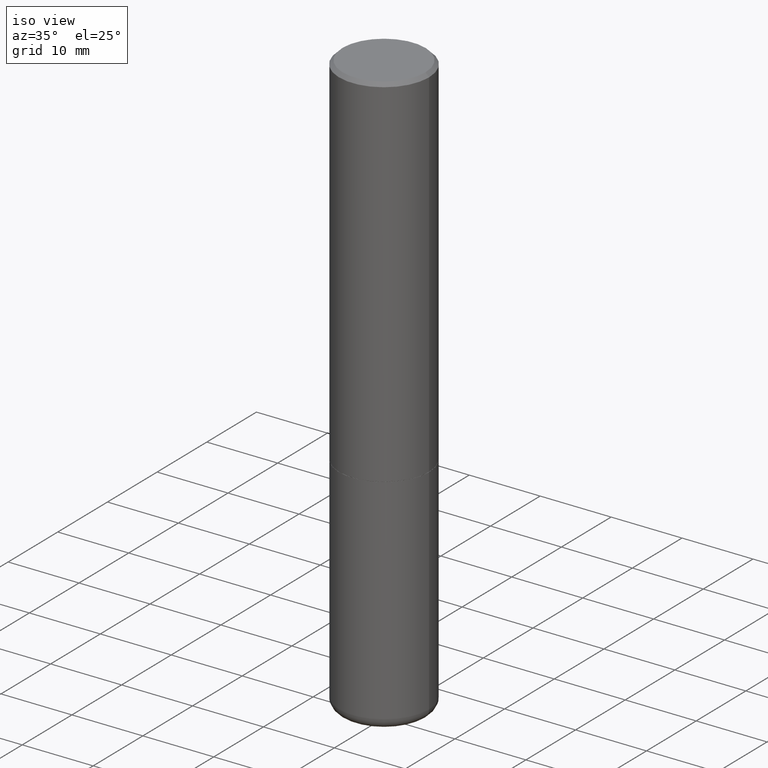
[diagram: clean part render]
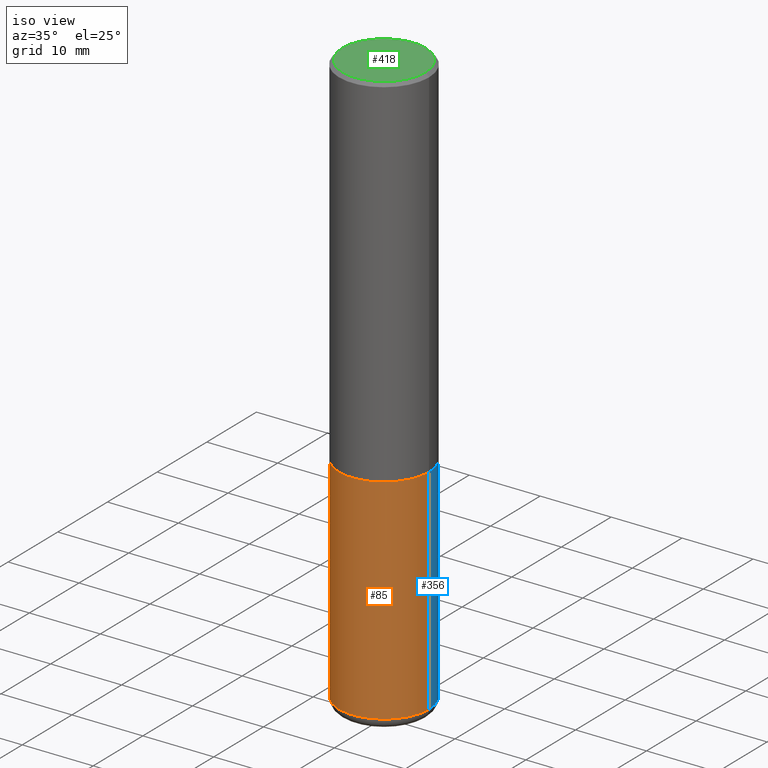
[diagram: same view with three faces highlighted in distinct colors, each labeled with its STEP entity id]
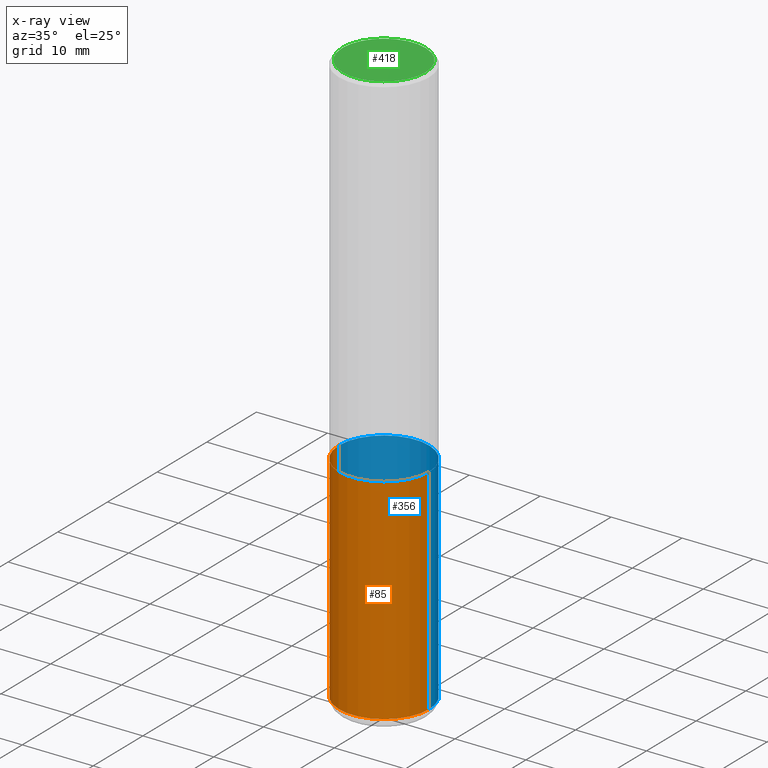
[diagram: x-ray of the same camera — body ghosted, the three highlighted faces saturated]
A machine part, iso view with three faces highlighted in distinct colors.
The next image is the same camera in x-ray (body ghosted, the three faces saturated) — at least one of them is partly hidden behind the body in this view.
Their STEP definitions:

[orange] entity #85 — the highlighted cylindrical surface (partial cylindrical patch) has radius 6.35 mm, axis along (-0, 0, 1).
#15 = CARTESIAN_POINT ( 'NONE',  ( -0.2500000000000000000, -7.284037234897712778E-15, -2.000000000000000000 ) ) ;
#40 = CYLINDRICAL_SURFACE ( 'NONE', #93, 0.2500000000000000000 ) ;
#71 = CARTESIAN_POINT ( 'NONE',  ( 0.2500000000000000000, -8.728703347107857054E-15, -2.000000000000000000 ) ) ;
#76 = DIRECTION ( 'NONE',  ( 1.000000000000000000, -6.982962677686266711E-15, 4.876176775795935793E-29 ) ) ;
#85 = ADVANCED_FACE ( 'NONE', ( #232 ), #40, .T. ) ;
#91 = DIRECTION ( 'NONE',  ( -2.445468806185136597E-29, 3.491481338843145583E-15, 1.000000000000000000 ) ) ;
#93 = AXIS2_PLACEMENT_3D ( 'NONE', #172, #362, #76 ) ;
#95 = CARTESIAN_POINT ( 'NONE',  ( -0.2500000000000000000, 1.776356839400250465E-15, -1.229733772563726445E-29 ) ) ;
#101 = ORIENTED_EDGE ( 'NONE', *, *, #288, .F. ) ;
#110 = VECTOR ( 'NONE', #350, 39.37007874015748143 ) ;
#111 = CARTESIAN_POINT ( 'NONE',  ( 0.2500000000000000000, -1.745740669421566678E-15, 1.219044193948983948E-29 ) ) ;
#129 = CIRCLE ( 'NONE', #397, 0.2500000000000000000 ) ;
#143 = LINE ( 'NONE', #111, #153 ) ;
#153 = VECTOR ( 'NONE', #368, 39.37007874015748143 ) ;
#154 = LINE ( 'NONE', #95, #110 ) ;
#172 = CARTESIAN_POINT ( 'NONE',  ( 0.000000000000000000, 0.000000000000000000, 0.000000000000000000 ) ) ;
#185 = DIRECTION ( 'NONE',  ( 1.000000000000000000, -6.982962677686266711E-15, 0.000000000000000000 ) ) ;
#186 = VERTEX_POINT ( 'NONE', #71 ) ;
#192 = DIRECTION ( 'NONE',  ( 1.000000000000000000, -6.982962677686270655E-15, 0.000000000000000000 ) ) ;
#219 = CARTESIAN_POINT ( 'NONE',  ( -0.2499999999999999722, -9.361468631509382488E-15, -3.189999999999999947 ) ) ;
#232 = FACE_OUTER_BOUND ( 'NONE', #345, .T. ) ;
#244 = EDGE_CURVE ( 'NONE', #278, #319, #154, .T. ) ;
#246 = ORIENTED_EDGE ( 'NONE', *, *, #244, .F. ) ;
#251 = CARTESIAN_POINT ( 'NONE',  ( 4.890937612370273194E-29, -6.982962677686291165E-15, -2.000000000000000000 ) ) ;
#252 = DIRECTION ( 'NONE',  ( -2.445468806185136597E-29, 3.491481338843145583E-15, 1.000000000000000000 ) ) ;
#278 = VERTEX_POINT ( 'NONE', #219 ) ;
#280 = EDGE_CURVE ( 'NONE', #278, #414, #310, .T. ) ;
#288 = EDGE_CURVE ( 'NONE', #319, #186, #129, .T. ) ;
#291 = CARTESIAN_POINT ( 'NONE',  ( 7.801045491730585789E-29, -1.113782547090963453E-14, -3.189999999999999947 ) ) ;
#310 = CIRCLE ( 'NONE', #337, 0.2500000000000000000 ) ;
#319 = VERTEX_POINT ( 'NONE', #15 ) ;
#330 = CARTESIAN_POINT ( 'NONE',  ( 0.2499999999999999722, -1.288356614033120121E-14, -3.189999999999999947 ) ) ;
#337 = AXIS2_PLACEMENT_3D ( 'NONE', #291, #252, #192 ) ;
#345 = EDGE_LOOP ( 'NONE', ( #246, #351, #385, #101 ) ) ;
#350 = DIRECTION ( 'NONE',  ( -2.445468806185136877E-29, 3.491481338843145188E-15, 1.000000000000000000 ) ) ;
#351 = ORIENTED_EDGE ( 'NONE', *, *, #280, .T. ) ;
#362 = DIRECTION ( 'NONE',  ( -2.445468806185136597E-29, 3.491481338843145583E-15, 1.000000000000000000 ) ) ;
#367 = EDGE_CURVE ( 'NONE', #414, #186, #143, .T. ) ;
#368 = DIRECTION ( 'NONE',  ( -2.445468806185136877E-29, 3.491481338843145188E-15, 1.000000000000000000 ) ) ;
#385 = ORIENTED_EDGE ( 'NONE', *, *, #367, .T. ) ;
#397 = AXIS2_PLACEMENT_3D ( 'NONE', #251, #91, #185 ) ;
#414 = VERTEX_POINT ( 'NONE', #330 ) ;

[blue] entity #356 — the highlighted cylindrical surface (partial cylindrical patch) has radius 6.35 mm, axis along (-0, 0, 1).
#3 = CYLINDRICAL_SURFACE ( 'NONE', #415, 0.2500000000000000000 ) ;
#15 = CARTESIAN_POINT ( 'NONE',  ( -0.2500000000000000000, -7.284037234897712778E-15, -2.000000000000000000 ) ) ;
#37 = DIRECTION ( 'NONE',  ( -2.445468806185136597E-29, 3.491481338843145583E-15, 1.000000000000000000 ) ) ;
#54 = CIRCLE ( 'NONE', #364, 0.2500000000000000000 ) ;
#62 = CARTESIAN_POINT ( 'NONE',  ( 4.890937612370273194E-29, -6.982962677686291165E-15, -2.000000000000000000 ) ) ;
#64 = DIRECTION ( 'NONE',  ( 1.000000000000000000, -6.982962677686270655E-15, 0.000000000000000000 ) ) ;
#71 = CARTESIAN_POINT ( 'NONE',  ( 0.2500000000000000000, -8.728703347107857054E-15, -2.000000000000000000 ) ) ;
#95 = CARTESIAN_POINT ( 'NONE',  ( -0.2500000000000000000, 1.776356839400250465E-15, -1.229733772563726445E-29 ) ) ;
#100 = DIRECTION ( 'NONE',  ( -2.445468806185136597E-29, 3.491481338843145583E-15, 1.000000000000000000 ) ) ;
#103 = ORIENTED_EDGE ( 'NONE', *, *, #208, .T. ) ;
#110 = VECTOR ( 'NONE', #350, 39.37007874015748143 ) ;
#111 = CARTESIAN_POINT ( 'NONE',  ( 0.2500000000000000000, -1.745740669421566678E-15, 1.219044193948983948E-29 ) ) ;
#130 = DIRECTION ( 'NONE',  ( 1.000000000000000000, -6.982962677686266711E-15, 0.000000000000000000 ) ) ;
#143 = LINE ( 'NONE', #111, #153 ) ;
#153 = VECTOR ( 'NONE', #368, 39.37007874015748143 ) ;
#154 = LINE ( 'NONE', #95, #110 ) ;
#170 = EDGE_CURVE ( 'NONE', #186, #319, #54, .T. ) ;
#186 = VERTEX_POINT ( 'NONE', #71 ) ;
#190 = EDGE_LOOP ( 'NONE', ( #103, #355, #199, #387 ) ) ;
#198 = CARTESIAN_POINT ( 'NONE',  ( 7.801045491730585789E-29, -1.113782547090963453E-14, -3.189999999999999947 ) ) ;
#199 = ORIENTED_EDGE ( 'NONE', *, *, #170, .F. ) ;
#205 = FACE_OUTER_BOUND ( 'NONE', #190, .T. ) ;
#208 = EDGE_CURVE ( 'NONE', #414, #278, #212, .T. ) ;
#212 = CIRCLE ( 'NONE', #240, 0.2500000000000000000 ) ;
#219 = CARTESIAN_POINT ( 'NONE',  ( -0.2499999999999999722, -9.361468631509382488E-15, -3.189999999999999947 ) ) ;
#240 = AXIS2_PLACEMENT_3D ( 'NONE', #198, #100, #64 ) ;
#244 = EDGE_CURVE ( 'NONE', #278, #319, #154, .T. ) ;
#278 = VERTEX_POINT ( 'NONE', #219 ) ;
#313 = DIRECTION ( 'NONE',  ( -2.445468806185136597E-29, 3.491481338843145583E-15, 1.000000000000000000 ) ) ;
#319 = VERTEX_POINT ( 'NONE', #15 ) ;
#330 = CARTESIAN_POINT ( 'NONE',  ( 0.2499999999999999722, -1.288356614033120121E-14, -3.189999999999999947 ) ) ;
#350 = DIRECTION ( 'NONE',  ( -2.445468806185136877E-29, 3.491481338843145188E-15, 1.000000000000000000 ) ) ;
#355 = ORIENTED_EDGE ( 'NONE', *, *, #244, .T. ) ;
#356 = ADVANCED_FACE ( 'NONE', ( #205 ), #3, .T. ) ;
#364 = AXIS2_PLACEMENT_3D ( 'NONE', #62, #313, #130 ) ;
#366 = CARTESIAN_POINT ( 'NONE',  ( 0.000000000000000000, 0.000000000000000000, 0.000000000000000000 ) ) ;
#367 = EDGE_CURVE ( 'NONE', #414, #186, #143, .T. ) ;
#368 = DIRECTION ( 'NONE',  ( -2.445468806185136877E-29, 3.491481338843145188E-15, 1.000000000000000000 ) ) ;
#387 = ORIENTED_EDGE ( 'NONE', *, *, #367, .F. ) ;
#398 = DIRECTION ( 'NONE',  ( 1.000000000000000000, -6.982962677686266711E-15, 4.876176775795935793E-29 ) ) ;
#414 = VERTEX_POINT ( 'NONE', #330 ) ;
#415 = AXIS2_PLACEMENT_3D ( 'NONE', #366, #37, #398 ) ;

[green] entity #418 — the highlighted planar face has unit normal (0, -0, -1).
#4 = ORIENTED_EDGE ( 'NONE', *, *, #344, .T. ) ;
#11 = DIRECTION ( 'NONE',  ( -2.445468806185136597E-29, 3.491481338843145583E-15, 1.000000000000000000 ) ) ;
#13 = AXIS2_PLACEMENT_3D ( 'NONE', #325, #11, #273 ) ;
#74 = DIRECTION ( 'NONE',  ( 2.438088387897960049E-29, -3.491481338843145188E-15, -1.000000000000000000 ) ) ;
#79 = DIRECTION ( 'NONE',  ( 1.000000000000000000, -6.982962677686267499E-15, 4.876225828469310563E-29 ) ) ;
#82 = CARTESIAN_POINT ( 'NONE',  ( 2.087702828670439639E-46, -2.980686340760894400E-32, -8.537024980200822558E-18 ) ) ;
#99 = VERTEX_POINT ( 'NONE', #293 ) ;
#106 = FACE_OUTER_BOUND ( 'NONE', #162, .T. ) ;
#108 = DIRECTION ( 'NONE',  ( -2.445468806185136597E-29, 3.491481338843145583E-15, 1.000000000000000000 ) ) ;
#162 = EDGE_LOOP ( 'NONE', ( #4, #292 ) ) ;
#164 = VERTEX_POINT ( 'NONE', #222 ) ;
#181 = AXIS2_PLACEMENT_3D ( 'NONE', #82, #108, #79 ) ;
#200 = DIRECTION ( 'NONE',  ( -1.000000000000000000, 6.982962677686265922E-15, -4.876176775795935793E-29 ) ) ;
#222 = CARTESIAN_POINT ( 'NONE',  ( -0.2299999999999999267, 1.640996229256272125E-15, -8.537024980212177841E-18 ) ) ;
#229 = PLANE ( 'NONE',  #256 ) ;
#256 = AXIS2_PLACEMENT_3D ( 'NONE', #360, #74, #200 ) ;
#265 = CIRCLE ( 'NONE', #13, 0.2299999999999999267 ) ;
#273 = DIRECTION ( 'NONE',  ( 1.000000000000000000, -6.982962677686267499E-15, 4.876225828469310563E-29 ) ) ;
#292 = ORIENTED_EDGE ( 'NONE', *, *, #324, .T. ) ;
#293 = CARTESIAN_POINT ( 'NONE',  ( 0.2299999999999999267, -1.681434332853598617E-15, -8.537024980189327067E-18 ) ) ;
#324 = EDGE_CURVE ( 'NONE', #99, #164, #372, .T. ) ;
#325 = CARTESIAN_POINT ( 'NONE',  ( 2.087702828670439639E-46, -2.980686340760894400E-32, -8.537024980200822558E-18 ) ) ;
#344 = EDGE_CURVE ( 'NONE', #164, #99, #265, .T. ) ;
#360 = CARTESIAN_POINT ( 'NONE',  ( 1.606081415867840870E-15, 0.2299999999999999267, -8.073092204240237214E-16 ) ) ;
#372 = CIRCLE ( 'NONE', #181, 0.2299999999999999267 ) ;
#418 = ADVANCED_FACE ( 'NONE', ( #106 ), #229, .F. ) ;